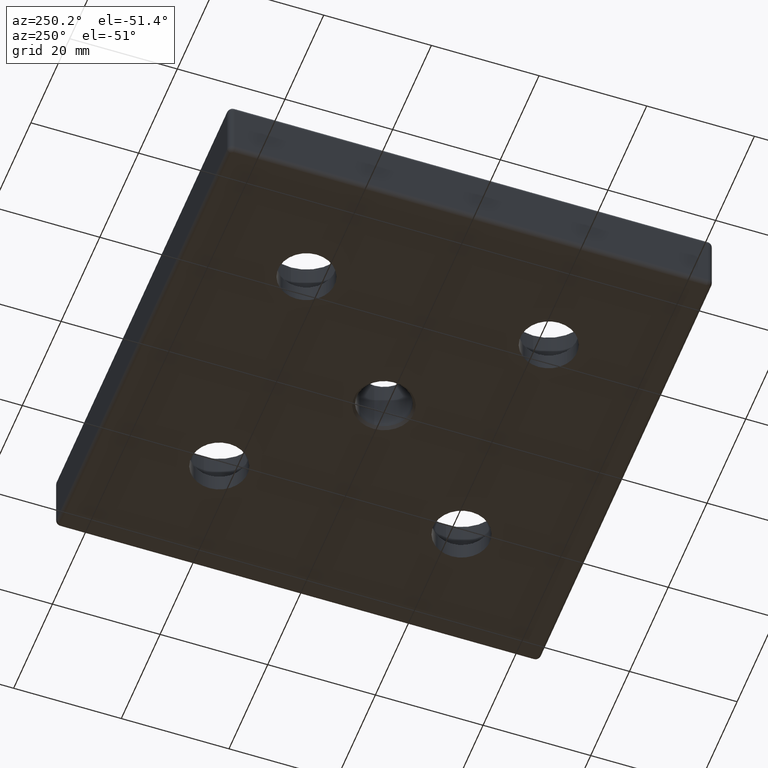
[diagram: clean part render]
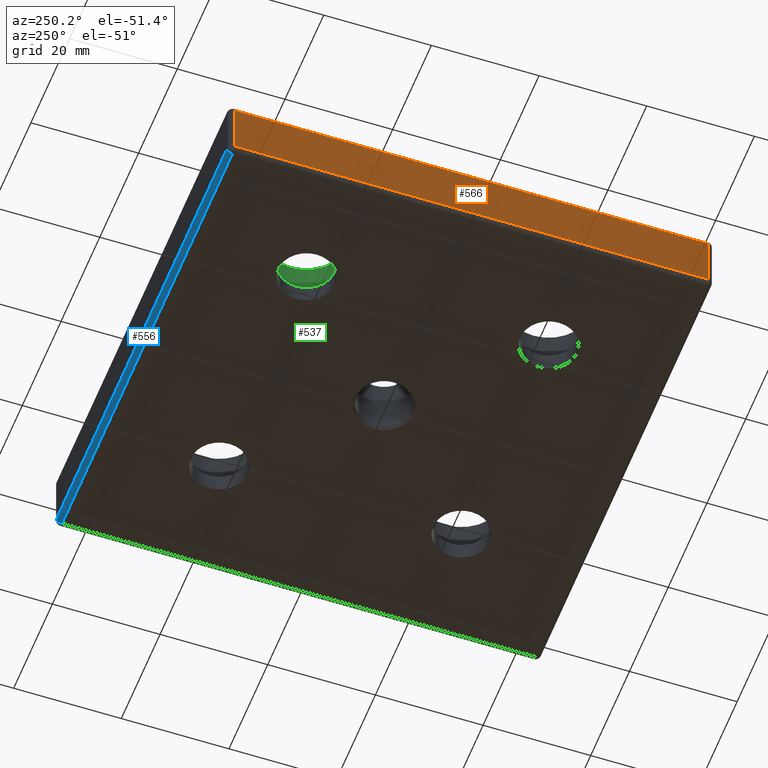
[diagram: same view with three faces highlighted in distinct colors, each labeled with its STEP entity id]
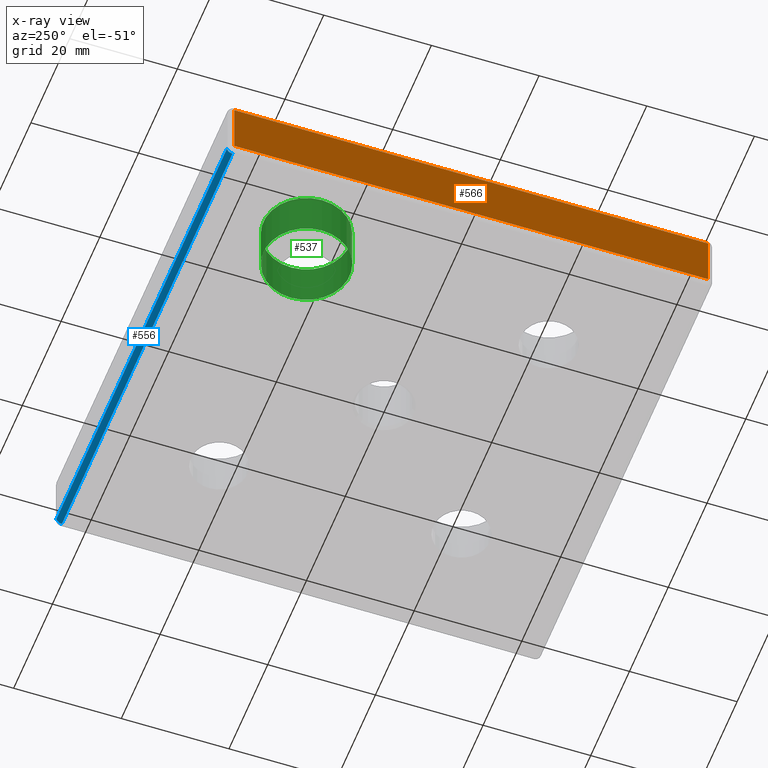
[diagram: x-ray of the same camera — body ghosted, the three highlighted faces saturated]
A machine part, auxiliary view with three faces highlighted in distinct colors.
The next image is the same camera in x-ray (body ghosted, the three faces saturated) — at least one of them is partly hidden behind the body in this view.
Their STEP definitions:

[orange] entity #566 — the highlighted planar face has unit normal (-1, 0, 0).
#32=LINE('',#965,#56);
#34=LINE('',#968,#58);
#43=LINE('',#996,#67);
#45=LINE('',#1000,#69);
#56=VECTOR('',#793,88.);
#58=VECTOR('',#797,10.);
#67=VECTOR('',#836,88.);
#69=VECTOR('',#842,10.);
#78=PLANE('',#653);
#165=FACE_OUTER_BOUND('',#231,.T.);
#231=EDGE_LOOP('',(#514,#515,#516,#517));
#306=VERTEX_POINT('',#927);
#308=VERTEX_POINT('',#933);
#313=VERTEX_POINT('',#947);
#317=VERTEX_POINT('',#961);
#369=EDGE_CURVE('',#308,#317,#32,.T.);
#371=EDGE_CURVE('',#317,#313,#34,.T.);
#386=EDGE_CURVE('',#313,#306,#43,.T.);
#388=EDGE_CURVE('',#306,#308,#45,.T.);
#514=ORIENTED_EDGE('',*,*,#369,.F.);
#515=ORIENTED_EDGE('',*,*,#388,.F.);
#516=ORIENTED_EDGE('',*,*,#386,.F.);
#517=ORIENTED_EDGE('',*,*,#371,.F.);
#566=ADVANCED_FACE('',(#165),#78,.T.);
#653=AXIS2_PLACEMENT_3D('',#1003,#846,#847);
#793=DIRECTION('',(0.,1.,0.));
#797=DIRECTION('',(0.,0.,1.));
#836=DIRECTION('',(0.,-1.,0.));
#842=DIRECTION('',(0.,0.,-1.));
#846=DIRECTION('center_axis',(-1.,0.,0.));
#847=DIRECTION('ref_axis',(0.,-1.,0.));
#927=CARTESIAN_POINT('',(-45.,-44.,11.));
#933=CARTESIAN_POINT('',(-45.,-44.,1.));
#947=CARTESIAN_POINT('',(-45.,44.,11.));
#961=CARTESIAN_POINT('',(-45.,44.,1.));
#965=CARTESIAN_POINT('',(-45.,22.5,1.));
#968=CARTESIAN_POINT('',(-45.,44.,0.));
#996=CARTESIAN_POINT('',(-45.,22.5,11.));
#1000=CARTESIAN_POINT('',(-45.,-44.,0.));
#1003=CARTESIAN_POINT('Origin',(-45.,45.,0.));

[blue] entity #556 — the highlighted cylindrical surface (edge-blend (fillet) strip) has radius 1 mm, axis along (1, 0, 0).
#25=LINE('',#868,#49);
#35=LINE('',#982,#59);
#49=VECTOR('',#672,88.);
#59=VECTOR('',#816,88.);
#93=CYLINDRICAL_SURFACE('',#643,1.);
#155=FACE_OUTER_BOUND('',#221,.T.);
#221=EDGE_LOOP('',(#474,#475,#476,#477));
#269=CIRCLE('',#630,1.);
#276=CIRCLE('',#641,0.999999999999996);
#283=VERTEX_POINT('',#865);
#284=VERTEX_POINT('',#867);
#316=VERTEX_POINT('',#959);
#321=VERTEX_POINT('',#978);
#327=EDGE_CURVE('',#284,#283,#25,.T.);
#366=EDGE_CURVE('',#283,#316,#269,.F.);
#376=EDGE_CURVE('',#321,#284,#276,.F.);
#378=EDGE_CURVE('',#316,#321,#35,.T.);
#474=ORIENTED_EDGE('',*,*,#376,.T.);
#475=ORIENTED_EDGE('',*,*,#327,.T.);
#476=ORIENTED_EDGE('',*,*,#366,.T.);
#477=ORIENTED_EDGE('',*,*,#378,.T.);
#556=ADVANCED_FACE('',(#155),#93,.T.);
#630=AXIS2_PLACEMENT_3D('',#960,#785,#786);
#641=AXIS2_PLACEMENT_3D('',#979,#810,#811);
#643=AXIS2_PLACEMENT_3D('',#981,#814,#815);
#672=DIRECTION('',(-1.,0.,0.));
#785=DIRECTION('center_axis',(-1.,0.,0.));
#786=DIRECTION('ref_axis',(0.,0.,-1.));
#810=DIRECTION('center_axis',(1.,0.,0.));
#811=DIRECTION('ref_axis',(0.,1.,0.));
#814=DIRECTION('center_axis',(1.,0.,0.));
#815=DIRECTION('ref_axis',(0.,0.707106781186546,-0.707106781186549));
#816=DIRECTION('',(1.,0.,0.));
#865=CARTESIAN_POINT('',(-44.,44.,0.));
#867=CARTESIAN_POINT('',(44.,44.,0.));
#868=CARTESIAN_POINT('',(22.5,44.,0.));
#959=CARTESIAN_POINT('',(-44.,45.,1.));
#960=CARTESIAN_POINT('Origin',(-44.,44.,1.));
#978=CARTESIAN_POINT('',(44.,45.,1.));
#979=CARTESIAN_POINT('Origin',(44.,44.,1.));
#981=CARTESIAN_POINT('Origin',(22.5,44.,1.));
#982=CARTESIAN_POINT('',(22.5,45.,1.));

[green] entity #537 — the highlighted cylindrical surface (bore or boss wall) has radius 8 mm, axis along (0, 0, 1).
#84=CYLINDRICAL_SURFACE('',#596,8.);
#119=FACE_BOUND('',#195,.T.);
#136=FACE_OUTER_BOUND('',#194,.T.);
#194=EDGE_LOOP('',(#422));
#195=EDGE_LOOP('',(#423));
#244=CIRCLE('',#586,8.);
#248=CIRCLE('',#594,8.);
#296=VERTEX_POINT('',#894);
#300=VERTEX_POINT('',#906);
#340=EDGE_CURVE('',#296,#296,#244,.T.);
#344=EDGE_CURVE('',#300,#300,#248,.T.);
#422=ORIENTED_EDGE('',*,*,#340,.F.);
#423=ORIENTED_EDGE('',*,*,#344,.F.);
#537=ADVANCED_FACE('',(#136,#119),#84,.F.);
#586=AXIS2_PLACEMENT_3D('',#895,#696,#697);
#594=AXIS2_PLACEMENT_3D('',#907,#712,#713);
#596=AXIS2_PLACEMENT_3D('',#910,#716,#717);
#696=DIRECTION('center_axis',(0.,0.,-1.));
#697=DIRECTION('ref_axis',(1.,0.,0.));
#712=DIRECTION('center_axis',(0.,0.,1.));
#713=DIRECTION('ref_axis',(1.,0.,0.));
#716=DIRECTION('center_axis',(0.,0.,1.));
#717=DIRECTION('ref_axis',(1.,0.,0.));
#894=CARTESIAN_POINT('',(-14.5,22.5,12.));
#895=CARTESIAN_POINT('Origin',(-22.5,22.5,12.));
#906=CARTESIAN_POINT('',(-14.5,22.5,3.5));
#907=CARTESIAN_POINT('Origin',(-22.5,22.5,3.5));
#910=CARTESIAN_POINT('Origin',(-22.5,22.5,7.75));